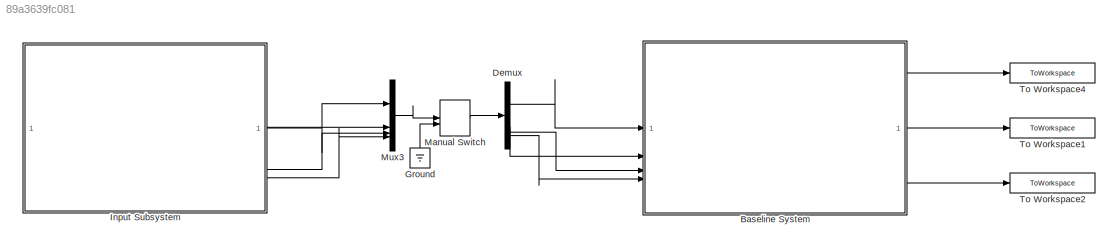
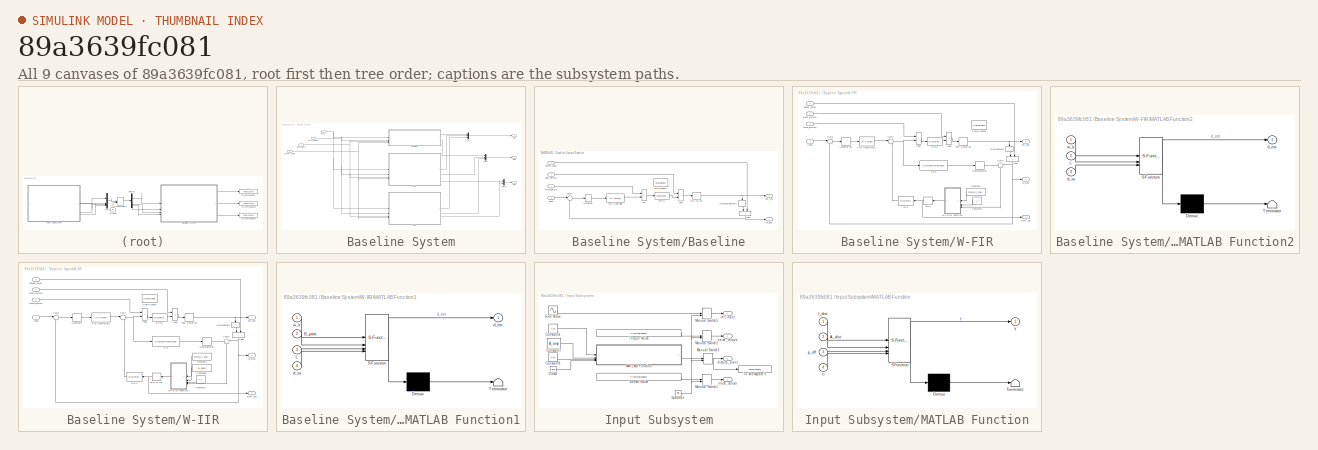
[diagram: thumbnail index - all 9 canvases of the model, root first then tree order]
MODEL slx_89a3639fc081
KIND model
CONFIG AbsTol = auto
CONFIG EnableMultiTasking = off
CONFIG FixedStep = auto
CONFIG MaxStep = auto
CONFIG MinStep = auto
CONFIG RelTol = 1e-3
CONFIG SampleTimeConstraint = Unconstrained
CONFIG SolverName = VariableStepAuto
CONFIG StartTime = 0.0
CONFIG StopTime = Tsim
BLOCK [SubSystem] Baseline System
BLOCK [SubSystem] Baseline System/Baseline
BLOCK [Sum] Baseline System/Baseline/Add
  IconShape = rectangular
BLOCK [Sum] Baseline System/Baseline/Add2
  IconShape = rectangular
  NameLocation = left
BLOCK [Sum] Baseline System/Baseline/Add4
  IconShape = rectangular
BLOCK [ZeroOrderHold] Baseline System/Baseline/Downsample out1
  NameLocation = left
  SampleTime = T_ss
BLOCK [Reference] Baseline System/Baseline/PID Controller  REF=cstblocks/LTI System
  SourceBlock = cstblocks/LTI System
  SourceType = LTI Block
BLOCK [DiscreteStateSpace] Baseline System/Baseline/Pz(z)1
  A = Pz_sys.A
  B = Pz_sys.B
  C = Pz_sys.C
  D = Pz_sys.D
  SampleTime = T_fs
BLOCK [StateSpace] Baseline System/Baseline/State-Space3
  A = Ps_sys.A
  B = Ps_sys.B
  C = Ps_sys.C
  Commented = on
  D = Ps_sys.D
  InitialCondition = 0
BLOCK [Sum] Baseline System/Baseline/Sum4
  Inputs = |+-
BLOCK [ZeroOrderHold] Baseline System/Baseline/Upsample
  SampleTime = T_fs
BLOCK [ZeroOrderHold] Baseline System/Baseline/ZOH at Tu3
  SampleTime = T_fs
BLOCK [Outport] Baseline System/Baseline/fb_slow
  Port = 2
BLOCK [Inport] Baseline System/Baseline/force_disturb
  Port = 2
BLOCK [Inport] Baseline System/Baseline/input
BLOCK [Outport] Baseline System/Baseline/out_fast
BLOCK [Inport] Baseline System/Baseline/plant_disturb
  Port = 3
BLOCK [Inport] Baseline System/Baseline/sensor_noise
  Port = 4
BLOCK [Mux] Baseline System/Mux
  DisplayOption = bar
  Inputs = 3
BLOCK [Mux] Baseline System/Mux1
  DisplayOption = bar
  Inputs = 3
BLOCK [Mux] Baseline System/Mux2
  DisplayOption = bar
  Inputs = 2
BLOCK [Outport] Baseline System/Out1
BLOCK [Outport] Baseline System/Out2
  Port = 2
BLOCK [Outport] Baseline System/Out3
  Port = 3
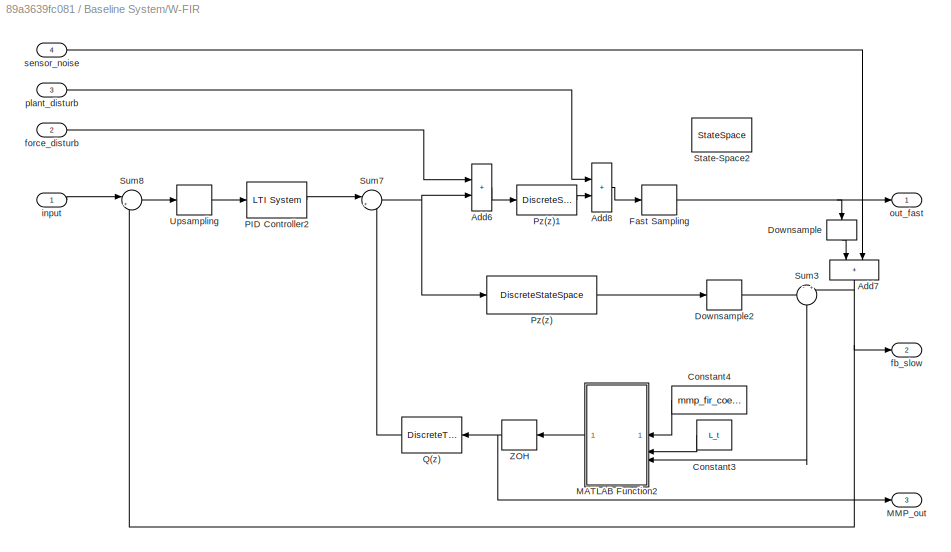
BLOCK [SubSystem] Baseline System/W-FIR
BLOCK [Sum] Baseline System/W-FIR/Add6
  IconShape = rectangular
BLOCK [Sum] Baseline System/W-FIR/Add7
  IconShape = rectangular
  NameLocation = left
BLOCK [Sum] Baseline System/W-FIR/Add8
  IconShape = rectangular
BLOCK [Constant] Baseline System/W-FIR/Constant3
  NameLocation = top
  Value = L_t
BLOCK [Constant] Baseline System/W-FIR/Constant4
  NameLocation = top
  Value = mmp_fir_coeff
BLOCK [ZeroOrderHold] Baseline System/W-FIR/Downsample
  NameLocation = left
  SampleTime = T_ss
BLOCK [ZeroOrderHold] Baseline System/W-FIR/Downsample2
  SampleTime = T_ss
BLOCK [ZeroOrderHold] Baseline System/W-FIR/Fast Sampling
  SampleTime = T_fs
BLOCK [SubSystem] Baseline System/W-FIR/MATLAB Function2
  ErrorFcn = Stateflow.Translate.translate
  NameLocation = top
  PermitHierarchicalResolution = ExplicitOnly
  SFBlockType = MATLAB Function
  SystemSampleTime = T_cs
  TreatAsAtomicUnit = on
BLOCK [Demux] Baseline System/W-FIR/MATLAB Function2/ Demux 
  Outputs = 1
BLOCK [S-Function] Baseline System/W-FIR/MATLAB Function2/ SFunction 
  EnableBusSupport = on
  FunctionName = sf_sfun
  PortCounts = [3 2]
  SFcnIsStateOwnerBlock = off
  SFunctionDeploymentMode = off
  Tag = Stateflow S-Function 3
BLOCK [Terminator] Baseline System/W-FIR/MATLAB Function2/ Terminator 
BLOCK [Inport] Baseline System/W-FIR/MATLAB Function2/L
  Port = 2
BLOCK [Outport] Baseline System/W-FIR/MATLAB Function2/d_est
BLOCK [Inport] Baseline System/W-FIR/MATLAB Function2/d_ss
  Port = 3
BLOCK [Inport] Baseline System/W-FIR/MATLAB Function2/w_k
BLOCK [Outport] Baseline System/W-FIR/MMP_out
  Port = 3
BLOCK [Reference] Baseline System/W-FIR/PID Controller2  REF=cstblocks/LTI System
  SourceBlock = cstblocks/LTI System
  SourceType = LTI Block
BLOCK [DiscreteStateSpace] Baseline System/W-FIR/Pz(z)
  A = Pz_sys.A
  B = Pz_sys.B
  C = Pz_sys.C
  D = Pz_sys.D
  SampleTime = T_fs
BLOCK [DiscreteStateSpace] Baseline System/W-FIR/Pz(z)1
  A = Pz_sys.A
  B = Pz_sys.B
  C = Pz_sys.C
  D = Pz_sys.D
  SampleTime = T_fs
BLOCK [DiscreteTransferFcn] Baseline System/W-FIR/Q(z)
  Denominator = cell2mat(Qcvx_sim.den)
  InputPortMap = u0
  NameLocation = top
  Numerator = cell2mat(Qcvx_sim.num)
BLOCK [StateSpace] Baseline System/W-FIR/State-Space2
  A = Ps_sys.A
  B = Ps_sys.B
  C = Ps_sys.C
  Commented = on
  D = Ps_sys.D
  InitialCondition = 0
BLOCK [Sum] Baseline System/W-FIR/Sum3
  Inputs = -|+
  NameLocation = left
BLOCK [Sum] Baseline System/W-FIR/Sum7
  Inputs = |+-
BLOCK [Sum] Baseline System/W-FIR/Sum8
  Inputs = |+-
BLOCK [ZeroOrderHold] Baseline System/W-FIR/Upsampling
  SampleTime = T_fs
BLOCK [ZeroOrderHold] Baseline System/W-FIR/ZOH
  NameLocation = top
  SampleTime = T_fs
BLOCK [Outport] Baseline System/W-FIR/fb_slow
  Port = 2
BLOCK [Inport] Baseline System/W-FIR/force_disturb
  Port = 2
BLOCK [Inport] Baseline System/W-FIR/input
BLOCK [Outport] Baseline System/W-FIR/out_fast
BLOCK [Inport] Baseline System/W-FIR/plant_disturb
  Port = 3
BLOCK [Inport] Baseline System/W-FIR/sensor_noise
  Port = 4
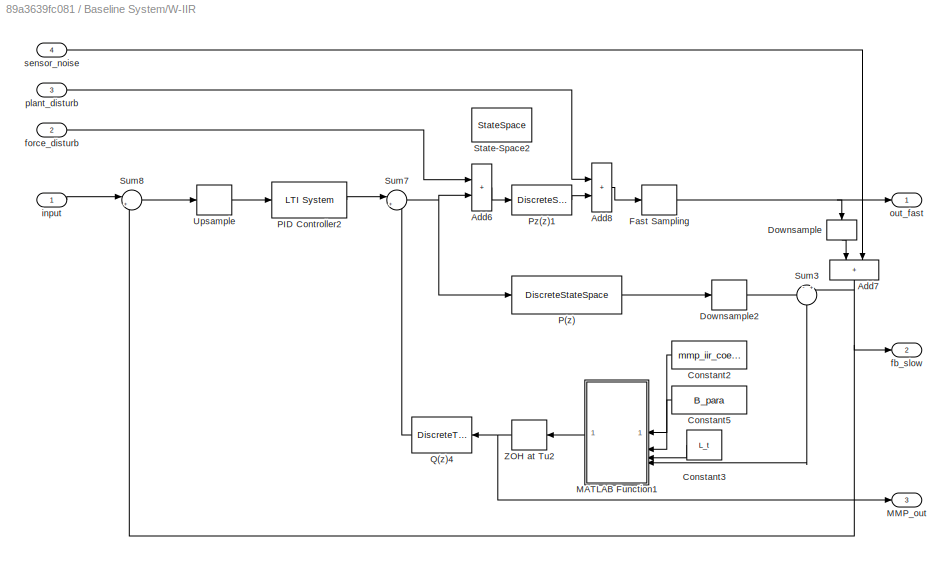
BLOCK [SubSystem] Baseline System/W-IIR
BLOCK [Sum] Baseline System/W-IIR/Add6
  IconShape = rectangular
BLOCK [Sum] Baseline System/W-IIR/Add7
  IconShape = rectangular
  NameLocation = left
BLOCK [Sum] Baseline System/W-IIR/Add8
  IconShape = rectangular
BLOCK [Constant] Baseline System/W-IIR/Constant2
  NameLocation = top
  Value = mmp_iir_coeff
BLOCK [Constant] Baseline System/W-IIR/Constant3
  NameLocation = top
  Value = L_t
BLOCK [Constant] Baseline System/W-IIR/Constant5
  NameLocation = top
  Value = B_para
BLOCK [ZeroOrderHold] Baseline System/W-IIR/Downsample
  NameLocation = left
  SampleTime = T_ss
BLOCK [ZeroOrderHold] Baseline System/W-IIR/Downsample2
  SampleTime = T_ss
BLOCK [ZeroOrderHold] Baseline System/W-IIR/Fast Sampling
  SampleTime = T_fs
BLOCK [SubSystem] Baseline System/W-IIR/MATLAB Function1
  ErrorFcn = Stateflow.Translate.translate
  NameLocation = top
  PermitHierarchicalResolution = ExplicitOnly
  SFBlockType = MATLAB Function
  SystemSampleTime = T_cs
  TreatAsAtomicUnit = on
BLOCK [Demux] Baseline System/W-IIR/MATLAB Function1/ Demux 
  Outputs = 1
BLOCK [S-Function] Baseline System/W-IIR/MATLAB Function1/ SFunction 
  EnableBusSupport = on
  FunctionName = sf_sfun
  PortCounts = [4 2]
  SFcnIsStateOwnerBlock = off
  SFunctionDeploymentMode = off
  Tag = Stateflow S-Function 4
BLOCK [Terminator] Baseline System/W-IIR/MATLAB Function1/ Terminator 
BLOCK [Inport] Baseline System/W-IIR/MATLAB Function1/B_para
  Port = 2
BLOCK [Inport] Baseline System/W-IIR/MATLAB Function1/L
  Port = 3
BLOCK [Outport] Baseline System/W-IIR/MATLAB Function1/d_est
BLOCK [Inport] Baseline System/W-IIR/MATLAB Function1/d_ss
  Port = 4
BLOCK [Inport] Baseline System/W-IIR/MATLAB Function1/w_k
BLOCK [Outport] Baseline System/W-IIR/MMP_out
  Port = 3
BLOCK [DiscreteStateSpace] Baseline System/W-IIR/P(z)
  A = Pz_sys.A
  B = Pz_sys.B
  C = Pz_sys.C
  D = Pz_sys.D
  SampleTime = T_fs
BLOCK [Reference] Baseline System/W-IIR/PID Controller2  REF=cstblocks/LTI System
  SourceBlock = cstblocks/LTI System
  SourceType = LTI Block
BLOCK [DiscreteStateSpace] Baseline System/W-IIR/Pz(z)1
  A = Pz_sys.A
  B = Pz_sys.B
  C = Pz_sys.C
  D = Pz_sys.D
  SampleTime = T_fs
BLOCK [DiscreteTransferFcn] Baseline System/W-IIR/Q(z)4
  Denominator = cell2mat(Qcvx_sim.den)
  InputPortMap = u0
  NameLocation = top
  Numerator = cell2mat(Qcvx_sim.num)
BLOCK [StateSpace] Baseline System/W-IIR/State-Space2
  A = Ps_sys.A
  B = Ps_sys.B
  C = Ps_sys.C
  Commented = on
  D = Ps_sys.D
  InitialCondition = 0
BLOCK [Sum] Baseline System/W-IIR/Sum3
  Inputs = -|+
  NameLocation = left
BLOCK [Sum] Baseline System/W-IIR/Sum7
  Inputs = |+-
BLOCK [Sum] Baseline System/W-IIR/Sum8
  Inputs = |+-
BLOCK [ZeroOrderHold] Baseline System/W-IIR/Upsample
  SampleTime = T_fs
BLOCK [ZeroOrderHold] Baseline System/W-IIR/ZOH at Tu2
  NameLocation = top
  SampleTime = T_fs
BLOCK [Outport] Baseline System/W-IIR/fb_slow
  Port = 2
BLOCK [Inport] Baseline System/W-IIR/force_disturb
  Port = 2
BLOCK [Inport] Baseline System/W-IIR/input
BLOCK [Outport] Baseline System/W-IIR/out_fast
BLOCK [Inport] Baseline System/W-IIR/plant_disturb
  Port = 3
BLOCK [Inport] Baseline System/W-IIR/sensor_noise
  Port = 4
BLOCK [Inport] Baseline System/force_disturb
  Port = 2
BLOCK [Inport] Baseline System/input
BLOCK [Inport] Baseline System/plant_disturb
  Port = 3
BLOCK [Inport] Baseline System/sensor_noise
  Port = 4
BLOCK [Demux] Demux
BLOCK [Ground] Ground
  NameLocation = right
BLOCK [SubSystem] Input Subsystem
BLOCK [Clock] Input Subsystem/Clock2
BLOCK [Constant] Input Subsystem/Constant6
  Value = f_hz
BLOCK [Constant] Input Subsystem/Constant7
  Value = A_amp
BLOCK [Constant] Input Subsystem/Constant8
  Value = p_off
BLOCK [Ground] Input Subsystem/Ground1
BLOCK [SubSystem] Input Subsystem/MATLAB Function
  ErrorFcn = Stateflow.Translate.translate
  LibrarySourceBlock = simulink/User-Defined\nFunctions/MATLAB Function
  PermitHierarchicalResolution = ExplicitOnly
  SFBlockType = MATLAB Function
  TreatAsAtomicUnit = on
BLOCK [Demux] Input Subsystem/MATLAB Function/ Demux 
  Outputs = 1
BLOCK [S-Function] Input Subsystem/MATLAB Function/ SFunction 
  EnableBusSupport = on
  FunctionName = sf_sfun
  PortCounts = [4 2]
  SFcnIsStateOwnerBlock = off
  SFunctionDeploymentMode = off
  Tag = Stateflow S-Function 2
BLOCK [Terminator] Input Subsystem/MATLAB Function/ Terminator 
BLOCK [Inport] Input Subsystem/MATLAB Function/A_dist
  Port = 2
BLOCK [Inport] Input Subsystem/MATLAB Function/f_dist
BLOCK [Inport] Input Subsystem/MATLAB Function/p_off
  Port = 3
BLOCK [Inport] Input Subsystem/MATLAB Function/u
  Port = 4
BLOCK [Outport] Input Subsystem/MATLAB Function/y
BLOCK [ManualSwitch] Input Subsystem/Manual Switch1
BLOCK [ManualSwitch] Input Subsystem/Manual Switch2
BLOCK [ManualSwitch] Input Subsystem/Manual Switch3
BLOCK [ManualSwitch] Input Subsystem/Manual Switch5
  CurrentSetting = 0
BLOCK [FromWorkspace] Input Subsystem/Sensor Noise
  Interpolate = off
  OutputAfterFinalValue = Setting to zero
  SampleTime = SensorNoise.Ts
  VariableName = [SensorNoise.Time,SensorNoise.Data]
  ZeroCross = off
BLOCK [Sin] Input Subsystem/Sine Wave
  SampleTime = T_fs
BLOCK [ToWorkspace] Input Subsystem/To Workspace 6
  MaxDataPoints = Inf
  SampleTime = T_fs
  SaveFormat = Structure With Time
  VariableName = dist
BLOCK [FromWorkspace] Input Subsystem/Torque Noise
  Interpolate = off
  OutputAfterFinalValue = Setting to zero
  SampleTime = ForceDist.Ts
  VariableName = [ForceDist.Time,ForceDist.Data]
  ZeroCross = off
BLOCK [Outport] Input Subsystem/disturb_plant
  Port = 3
BLOCK [Outport] Input Subsystem/noise_sensor
  Port = 4
BLOCK [Outport] Input Subsystem/noise_torque
  Port = 2
BLOCK [Outport] Input Subsystem/ref_input
BLOCK [ManualSwitch] Manual Switch
  CurrentSetting = 0
BLOCK [Mux] Mux3
  DisplayOption = bar
BLOCK [ToWorkspace] To Workspace1
  FixptAsFi = on
  MaxDataPoints = inf
  SampleTime = -1
  SaveFormat = Structure With Time
  VariableName = y_ss
BLOCK [ToWorkspace] To Workspace2
  FixptAsFi = on
  MaxDataPoints = inf
  SampleTime = -1
  SaveFormat = Structure With Time
  VariableName = mmp_base
BLOCK [ToWorkspace] To Workspace4
  FixptAsFi = on
  MaxDataPoints = inf
  SampleTime = -1
  SaveFormat = Structure With Time
  VariableName = y_fs
NET Baseline System/Baseline/Add2:1 -> Baseline System/Baseline/Sum4:2, Baseline System/Baseline/fb_slow:1
LINE Baseline System/Baseline/Add4:1 -> Baseline System/Baseline/ZOH at Tu3:1
LINE Baseline System/Baseline/Add:1 -> Baseline System/Baseline/Pz(z)1:1
LINE Baseline System/Baseline/Downsample out1:1 -> Baseline System/Baseline/Add2:1
LINE Baseline System/Baseline/PID Controller:1 -> Baseline System/Baseline/Add:2
LINE Baseline System/Baseline/Pz(z)1:1 -> Baseline System/Baseline/Add4:2
LINE Baseline System/Baseline/Sum4:1 -> Baseline System/Baseline/Upsample:1
LINE Baseline System/Baseline/Upsample:1 -> Baseline System/Baseline/PID Controller:1
NET Baseline System/Baseline/ZOH at Tu3:1 -> Baseline System/Baseline/Downsample out1:1, Baseline System/Baseline/out_fast:1
LINE Baseline System/Baseline/force_disturb:1 -> Baseline System/Baseline/Add:1
LINE Baseline System/Baseline/input:1 -> Baseline System/Baseline/Sum4:1
LINE Baseline System/Baseline/plant_disturb:1 -> Baseline System/Baseline/Add4:1
LINE Baseline System/Baseline/sensor_noise:1 -> Baseline System/Baseline/Add2:2
LINE Baseline System/Baseline:1 -> Baseline System/Mux:1
LINE Baseline System/Baseline:2 -> Baseline System/Mux1:1
LINE Baseline System/Mux1:1 -> Baseline System/Out2:1
LINE Baseline System/Mux2:1 -> Baseline System/Out3:1
LINE Baseline System/Mux:1 -> Baseline System/Out1:1
LINE Baseline System/W-FIR/Add6:1 -> Baseline System/W-FIR/Pz(z)1:1
NET Baseline System/W-FIR/Add7:1 -> Baseline System/W-FIR/Sum3:2, Baseline System/W-FIR/Sum8:2, Baseline System/W-FIR/fb_slow:1
LINE Baseline System/W-FIR/Add8:1 -> Baseline System/W-FIR/Fast Sampling:1
LINE Baseline System/W-FIR/Constant3:1 -> Baseline System/W-FIR/MATLAB Function2:2
LINE Baseline System/W-FIR/Constant4:1 -> Baseline System/W-FIR/MATLAB Function2:1
LINE Baseline System/W-FIR/Downsample2:1 -> Baseline System/W-FIR/Sum3:1
LINE Baseline System/W-FIR/Downsample:1 -> Baseline System/W-FIR/Add7:1
NET Baseline System/W-FIR/Fast Sampling:1 -> Baseline System/W-FIR/Downsample:1, Baseline System/W-FIR/out_fast:1
LINE Baseline System/W-FIR/MATLAB Function2:1 -> Baseline System/W-FIR/ZOH:1
LINE Baseline System/W-FIR/PID Controller2:1 -> Baseline System/W-FIR/Sum7:1
LINE Baseline System/W-FIR/Pz(z)1:1 -> Baseline System/W-FIR/Add8:2
LINE Baseline System/W-FIR/Pz(z):1 -> Baseline System/W-FIR/Downsample2:1
LINE Baseline System/W-FIR/Q(z):1 -> Baseline System/W-FIR/Sum7:2
LINE Baseline System/W-FIR/Sum3:1 -> Baseline System/W-FIR/MATLAB Function2:3
NET Baseline System/W-FIR/Sum7:1 -> Baseline System/W-FIR/Add6:2, Baseline System/W-FIR/Pz(z):1
LINE Baseline System/W-FIR/Sum8:1 -> Baseline System/W-FIR/Upsampling:1
LINE Baseline System/W-FIR/Upsampling:1 -> Baseline System/W-FIR/PID Controller2:1
NET Baseline System/W-FIR/ZOH:1 -> Baseline System/W-FIR/MMP_out:1, Baseline System/W-FIR/Q(z):1
LINE Baseline System/W-FIR/force_disturb:1 -> Baseline System/W-FIR/Add6:1
LINE Baseline System/W-FIR/input:1 -> Baseline System/W-FIR/Sum8:1
LINE Baseline System/W-FIR/plant_disturb:1 -> Baseline System/W-FIR/Add8:1
LINE Baseline System/W-FIR/sensor_noise:1 -> Baseline System/W-FIR/Add7:2
LINE Baseline System/W-FIR:1 -> Baseline System/Mux:2
LINE Baseline System/W-FIR:2 -> Baseline System/Mux1:2
LINE Baseline System/W-FIR:3 -> Baseline System/Mux2:1
LINE Baseline System/W-IIR/Add6:1 -> Baseline System/W-IIR/Pz(z)1:1
NET Baseline System/W-IIR/Add7:1 -> Baseline System/W-IIR/Sum3:2, Baseline System/W-IIR/Sum8:2, Baseline System/W-IIR/fb_slow:1
LINE Baseline System/W-IIR/Add8:1 -> Baseline System/W-IIR/Fast Sampling:1
LINE Baseline System/W-IIR/Constant2:1 -> Baseline System/W-IIR/MATLAB Function1:1
LINE Baseline System/W-IIR/Constant3:1 -> Baseline System/W-IIR/MATLAB Function1:3
LINE Baseline System/W-IIR/Constant5:1 -> Baseline System/W-IIR/MATLAB Function1:2
LINE Baseline System/W-IIR/Downsample2:1 -> Baseline System/W-IIR/Sum3:1
LINE Baseline System/W-IIR/Downsample:1 -> Baseline System/W-IIR/Add7:1
NET Baseline System/W-IIR/Fast Sampling:1 -> Baseline System/W-IIR/Downsample:1, Baseline System/W-IIR/out_fast:1
LINE Baseline System/W-IIR/MATLAB Function1:1 -> Baseline System/W-IIR/ZOH at Tu2:1
LINE Baseline System/W-IIR/P(z):1 -> Baseline System/W-IIR/Downsample2:1
LINE Baseline System/W-IIR/PID Controller2:1 -> Baseline System/W-IIR/Sum7:1
LINE Baseline System/W-IIR/Pz(z)1:1 -> Baseline System/W-IIR/Add8:2
LINE Baseline System/W-IIR/Q(z)4:1 -> Baseline System/W-IIR/Sum7:2
LINE Baseline System/W-IIR/Sum3:1 -> Baseline System/W-IIR/MATLAB Function1:4
NET Baseline System/W-IIR/Sum7:1 -> Baseline System/W-IIR/Add6:2, Baseline System/W-IIR/P(z):1
LINE Baseline System/W-IIR/Sum8:1 -> Baseline System/W-IIR/Upsample:1
LINE Baseline System/W-IIR/Upsample:1 -> Baseline System/W-IIR/PID Controller2:1
NET Baseline System/W-IIR/ZOH at Tu2:1 -> Baseline System/W-IIR/MMP_out:1, Baseline System/W-IIR/Q(z)4:1
LINE Baseline System/W-IIR/force_disturb:1 -> Baseline System/W-IIR/Add6:1
LINE Baseline System/W-IIR/input:1 -> Baseline System/W-IIR/Sum8:1
LINE Baseline System/W-IIR/plant_disturb:1 -> Baseline System/W-IIR/Add8:1
LINE Baseline System/W-IIR/sensor_noise:1 -> Baseline System/W-IIR/Add7:2
LINE Baseline System/W-IIR:1 -> Baseline System/Mux:3
LINE Baseline System/W-IIR:2 -> Baseline System/Mux1:3
LINE Baseline System/W-IIR:3 -> Baseline System/Mux2:2
NET Baseline System/force_disturb:1 -> Baseline System/Baseline:2, Baseline System/W-FIR:2, Baseline System/W-IIR:2
NET Baseline System/input:1 -> Baseline System/Baseline:1, Baseline System/W-FIR:1, Baseline System/W-IIR:1
NET Baseline System/plant_disturb:1 -> Baseline System/Baseline:3, Baseline System/W-FIR:3, Baseline System/W-IIR:3
NET Baseline System/sensor_noise:1 -> Baseline System/Baseline:4, Baseline System/W-FIR:4, Baseline System/W-IIR:4
LINE Baseline System:1 -> To Workspace4:1
LINE Baseline System:2 -> To Workspace1:1
LINE Baseline System:3 -> To Workspace2:1
LINE Demux:1 -> Baseline System:1
LINE Demux:2 -> Baseline System:2
LINE Demux:3 -> Baseline System:3
LINE Demux:4 -> Baseline System:4
LINE Ground:1 -> Manual Switch:2
LINE Input Subsystem/Clock2:1 -> Input Subsystem/MATLAB Function:4
LINE Input Subsystem/Constant6:1 -> Input Subsystem/MATLAB Function:1
LINE Input Subsystem/Constant7:1 -> Input Subsystem/MATLAB Function:2
LINE Input Subsystem/Constant8:1 -> Input Subsystem/MATLAB Function:3
NET Input Subsystem/Ground1:1 -> Input Subsystem/Manual Switch1:2, Input Subsystem/Manual Switch2:2, Input Subsystem/Manual Switch3:2, Input Subsystem/Manual Switch5:2
LINE Input Subsystem/MATLAB Function:1 -> Input Subsystem/Manual Switch3:1
LINE Input Subsystem/Manual Switch1:1 -> Input Subsystem/noise_sensor:1
LINE Input Subsystem/Manual Switch2:1 -> Input Subsystem/noise_torque:1
NET Input Subsystem/Manual Switch3:1 -> Input Subsystem/To Workspace 6:1, Input Subsystem/disturb_plant:1
LINE Input Subsystem/Manual Switch5:1 -> Input Subsystem/ref_input:1
LINE Input Subsystem/Sensor Noise:1 -> Input Subsystem/Manual Switch1:1
LINE Input Subsystem/Sine Wave:1 -> Input Subsystem/Manual Switch5:1
LINE Input Subsystem/Torque Noise:1 -> Input Subsystem/Manual Switch2:1
LINE Input Subsystem:1 -> Mux3:1
LINE Input Subsystem:2 -> Mux3:2
LINE Input Subsystem:3 -> Mux3:3
LINE Input Subsystem:4 -> Mux3:4
LINE Manual Switch:1 -> Demux:1
LINE Mux3:1 -> Manual Switch:1
note: NET lines group one-source signal fan-out (src -> all destinations, sorted); 1:1 wires keep LINE
CHART Input Subsystem/MATLAB Function states=1 transitions=1
  STATE_LABEL 'eML_blk_kernel()'
  STATE_LABEL 'SCRIPT:\nfunction y = fcn(f_dist,A_dist,p_off,u)\ny = zeros(1,length(u));\nfor i = 1:length(f_dist)\ny = y + A_dist(i)*sin(2*pi*f_dist(i)*u+p_off(i));\nend'
CHART Baseline System/W-FIR/MATLAB Function2 states=1 transitions=1
  STATE_LABEL 'eML_blk_kernel()'
  STATE_LABEL 'SCRIPT:\n% FIR siganl reconstruction\nfunction d_est = fcn(w_k, L, d_ss)\npersistent n_w phi n_ss n_cs N_L; % keeps data of variables\n% assigning initial values\nif isempty(n_w)\n    n_w = size(w_k,1); % n_w = 2m disturbances (index starts at 0,1,...,2m-1)\n    phi = zeros(1,n_w);\n    n_ss = 0;\n    n_cs = 0;\n    [N_L, ~] = rat(L);\nend\n\n% starts first loop with n_fs = 1 and n_ss = 1\n% in MATLAB, d_ss[n_s...<+1439ch>'
CHART Baseline System/W-IIR/MATLAB Function1 states=1 transitions=1
  STATE_LABEL 'eML_blk_kernel()'
  STATE_LABEL 'SCRIPT:\n% IIR signal reconstruction based on 2018 paper. Rejecting fast narrow-band\n% disturbances with slow sensor feedback for quality beam steering in\n% selective laser sintering (Xiao, H.; Jiang, T; Chen, X.)\nfunction d_est = fcn(w_k, B_para, L, d_ss) % keeps data of variables\npersistent phi n_cs n_ss d_IIR N_L n_w d_buff max_buffer_size buffer_indices;\n\n% assigning initial values\nif isempty(n...<+2766ch>'
CHART  states=0 transitions=0
CHART  states=0 transitions=0
CHART  states=0 transitions=0
